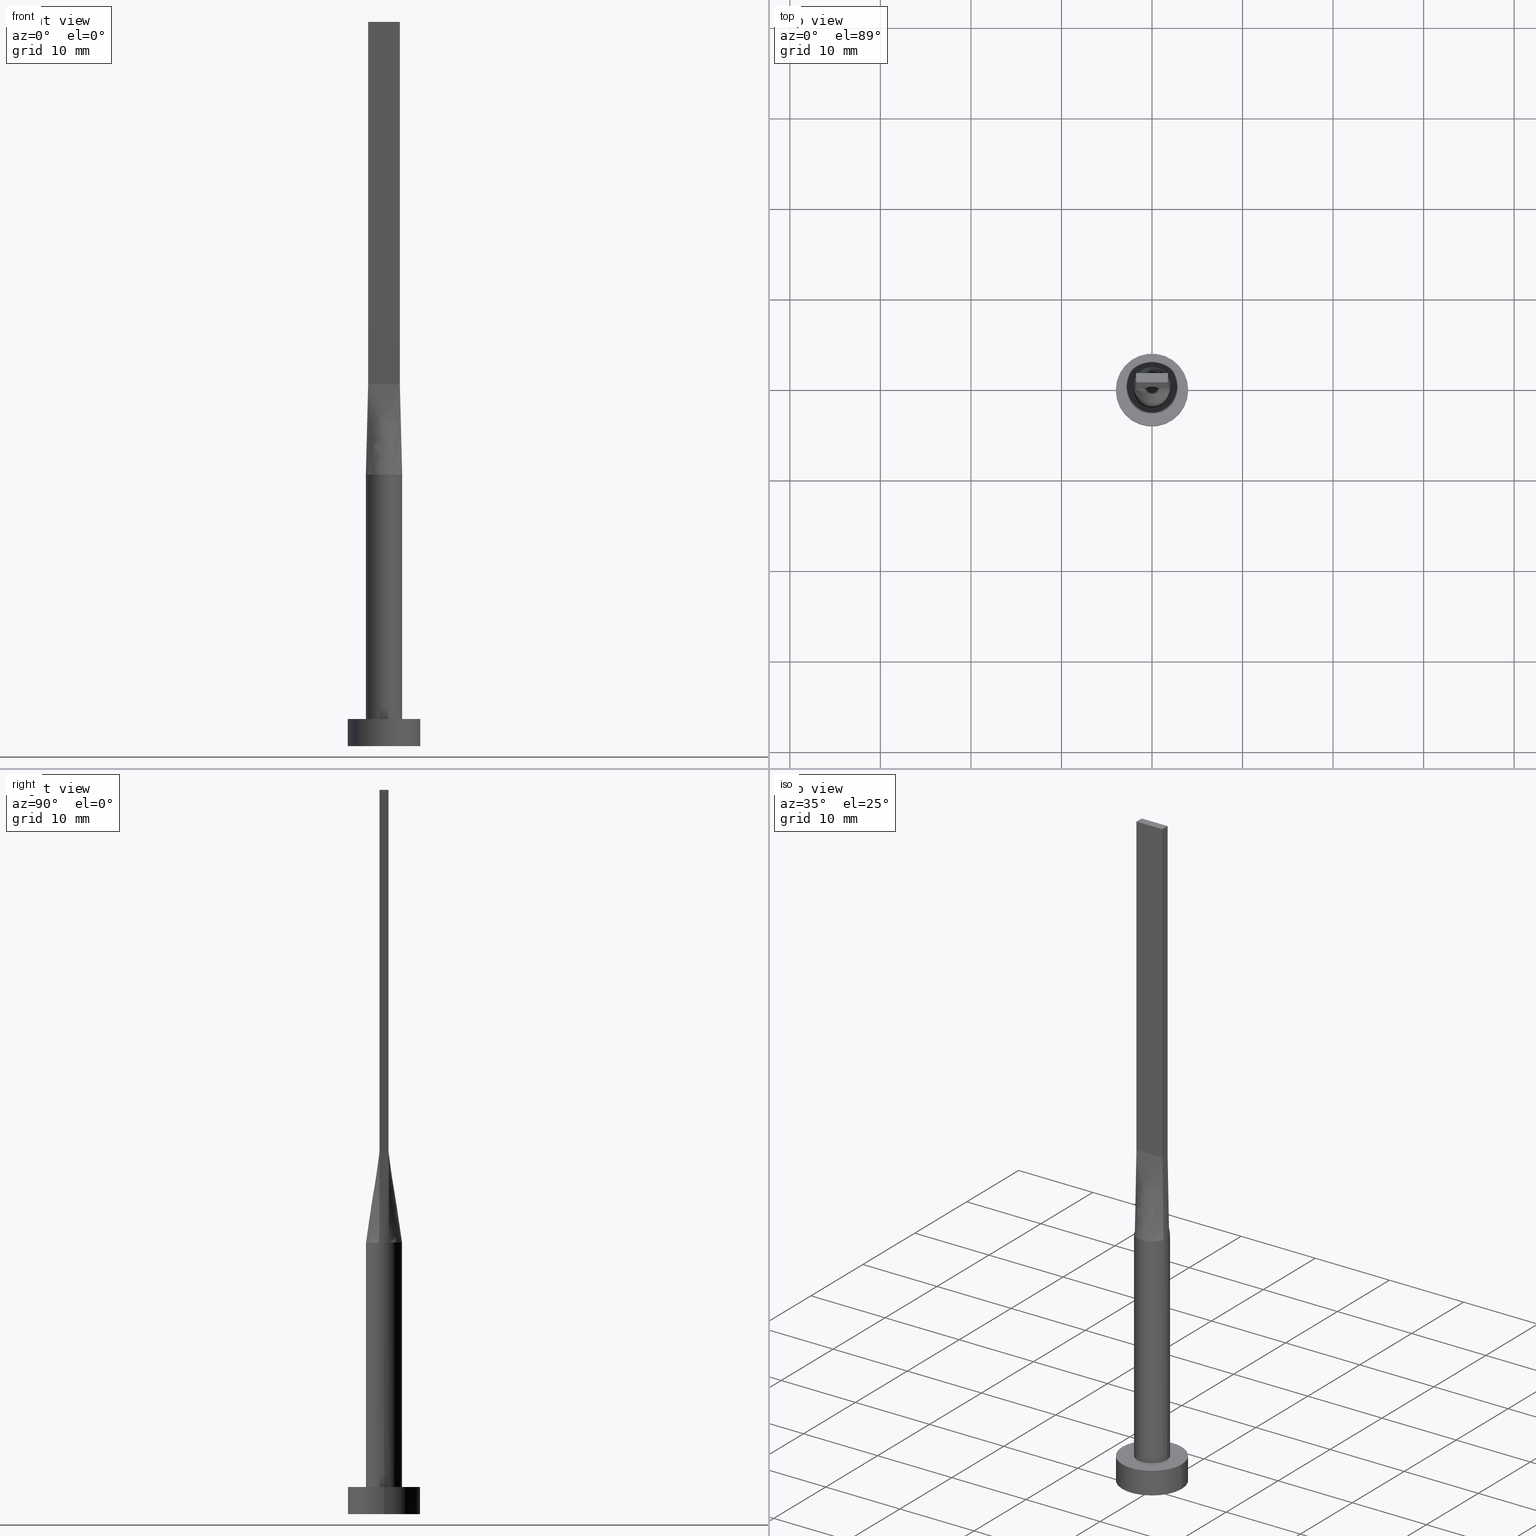
[diagram: canonical four-view strip — front | top / right | iso, engineering-drawing reading convention]
A machine part, canonical four-view strip (front | top / right | iso — engineering-drawing reading convention). The complete STEP part file that produces these views, byte-faithful:
ISO-10303-21;
HEADER;
FILE_DESCRIPTION (( 'STEP AP203' ),
    '1' );
FILE_NAME ('5f00.STEP',
    '2026-02-12T10:42:59',
    ( '' ),
    ( '' ),
    'SwSTEP 2.0',
    'SolidWorks 2019',
    '' );
FILE_SCHEMA (( 'CONFIG_CONTROL_DESIGN' ));
ENDSEC;

DATA;
#1 = APPROVAL_DATE_TIME ( #550, #447 ) ;
#2 = CARTESIAN_POINT ( 'NONE',  ( -1.750000000000000000, -0.4999999999999995559, 80.00000000000000000 ) ) ;
#3 = CARTESIAN_POINT ( 'NONE',  ( 1.879022738048942154, 0.7035303061092218480, 30.00000000000000355 ) ) ;
#4 = CARTESIAN_POINT ( 'NONE',  ( 0.000000000000000000, 0.000000000000000000, 0.000000000000000000 ) ) ;
#5 = LINE ( 'NONE', #97, #457 ) ;
#6 = B_SPLINE_SURFACE_WITH_KNOTS ( 'NONE', 3, 1, ( 
 ( #340, #479 ),
 ( #252, #67 ),
 ( #390, #170 ),
 ( #184, #541 ),
 ( #250, #242 ),
 ( #143, #197 ) ),
 .UNSPECIFIED., .F., .F., .F.,
 ( 4, 2, 4 ),
 ( 2, 2 ),
 ( 0.000000000000000000, 0.5000000000000000000, 1.000000000000000000 ),
 ( 0.000000000000000000, 1.000000000000000000 ),
 .UNSPECIFIED. ) ;
#7 = PERSON_AND_ORGANIZATION ( #155, #561 ) ;
#8 = EDGE_CURVE ( 'NONE', #465, #335, #560, .T. ) ;
#9 = CARTESIAN_POINT ( 'NONE',  ( -0.9545234919502401105, 1.774214358793530177, 30.00000000000000355 ) ) ;
#10 = AXIS2_PLACEMENT_3D ( 'NONE', #265, #129, #345 ) ;
#11 = CARTESIAN_POINT ( 'NONE',  ( 0.000000000000000000, 0.000000000000000000, 3.000000000000000000 ) ) ;
#12 = CARTESIAN_POINT ( 'NONE',  ( -1.836523947640823273, -0.5247211278973773485, 35.00000000000000000 ) ) ;
#13 = CARTESIAN_POINT ( 'NONE',  ( -1.155438169178558017, 1.647245198242353936, 30.00000000000000711 ) ) ;
#14 = ORIENTED_EDGE ( 'NONE', *, *, #538, .F. ) ;
#15 = ORIENTED_EDGE ( 'NONE', *, *, #22, .T. ) ;
#16 = APPROVAL_DATE_TIME ( #330, #208 ) ;
#17 = ORIENTED_EDGE ( 'NONE', *, *, #469, .T. ) ;
#18 = CARTESIAN_POINT ( 'NONE',  ( 1.999999999999999556, -0.1867399261870124894, 30.00000000000000355 ) ) ;
#19 = CARTESIAN_POINT ( 'NONE',  ( -1.750000000000000000, -0.4999999999999995559, 80.00000000000000000 ) ) ;
#20 = AXIS2_PLACEMENT_3D ( 'NONE', #42, #34, #173 ) ;
#21 = ORIENTED_EDGE ( 'NONE', *, *, #78, .T. ) ;
#22 = EDGE_CURVE ( 'NONE', #23, #450, #408, .T. ) ;
#23 = VERTEX_POINT ( 'NONE', #439 ) ;
#24 = FACE_BOUND ( 'NONE', #513, .T. ) ;
#25 = ADVANCED_FACE ( 'NONE', ( #24, #36 ), #528, .T. ) ;
#26 = AXIS2_PLACEMENT_3D ( 'NONE', #284, #281, #456 ) ;
#27 = CARTESIAN_POINT ( 'NONE',  ( 1.458333333333332815, -0.4999999999999996669, 39.99999999999999289 ) ) ;
#28 = LINE ( 'NONE', #71, #263 ) ;
#29 = CARTESIAN_POINT ( 'NONE',  ( -1.155438169178558017, 1.647245198242353936, 30.00000000000000711 ) ) ;
#30 = AXIS2_PLACEMENT_3D ( 'NONE', #81, #314, #177 ) ;
#31 = CARTESIAN_POINT ( 'NONE',  ( 0.5833333333333323711, 0.5000000000000002220, 39.99999999999999289 ) ) ;
#32 = DIRECTION ( 'NONE',  ( 0.000000000000000000, 0.000000000000000000, 1.000000000000000000 ) ) ;
#33 = CARTESIAN_POINT ( 'NONE',  ( -1.812374357931688884, 0.8669367617086288780, 30.00000000000001066 ) ) ;
#34 = DIRECTION ( 'NONE',  ( -0.000000000000000000, -0.000000000000000000, -1.000000000000000000 ) ) ;
#35 = CARTESIAN_POINT ( 'NONE',  ( 0.000000000000000000, 0.000000000000000000, 80.00000000000000000 ) ) ;
#36 = FACE_OUTER_BOUND ( 'NONE', #268, .T. ) ;
#37 = DIRECTION ( 'NONE',  ( -0.000000000000000000, -0.000000000000000000, -1.000000000000000000 ) ) ;
#38 = EDGE_CURVE ( 'NONE', #353, #335, #60, .T. ) ;
#39 = DESIGN_CONTEXT ( 'detailed design', #519, 'design' ) ;
#40 = VECTOR ( 'NONE', #573, 1000.000000000000000 ) ;
#41 = LINE ( 'NONE', #391, #40 ) ;
#42 = CARTESIAN_POINT ( 'NONE',  ( 0.000000000000000000, 0.000000000000000000, 30.00000000000000000 ) ) ;
#43 = APPROVAL_STATUS ( 'not_yet_approved' ) ;
#44 = ORIENTED_EDGE ( 'NONE', *, *, #507, .T. ) ;
#45 = APPROVAL_DATE_TIME ( #190, #581 ) ;
#46 = FACE_OUTER_BOUND ( 'NONE', #229, .T. ) ;
#47 = ORIENTED_EDGE ( 'NONE', *, *, #301, .T. ) ;
#48 = EDGE_LOOP ( 'NONE', ( #516, #371, #346, #200 ) ) ;
#49 = CARTESIAN_POINT ( 'NONE',  ( 1.973362360690451567, -0.3733416268639390689, 30.00000000000000000 ) ) ;
#50 = EDGE_CURVE ( 'NONE', #23, #353, #419, .T. ) ;
#51 = CALENDAR_DATE ( 2026, 12, 2 ) ;
#52 = CARTESIAN_POINT ( 'NONE',  ( -1.879022738048941710, 0.7035303061092221810, 30.00000000000000000 ) ) ;
#53 = AXIS2_PLACEMENT_3D ( 'NONE', #348, #131, #394 ) ;
#54 = CYLINDRICAL_SURFACE ( 'NONE', #214, 4.000000000000000000 ) ;
#55 = CARTESIAN_POINT ( 'NONE',  ( 4.000000000000000000, 4.898587196589412829E-16, 0.000000000000000000 ) ) ;
#56 = APPROVAL_ROLE ( '' ) ;
#57 = ORIENTED_EDGE ( 'NONE', *, *, #395, .F. ) ;
#58 = COORDINATED_UNIVERSAL_TIME_OFFSET ( 1, 0, .AHEAD. ) ;
#59 = EDGE_CURVE ( 'NONE', #327, #244, #201, .T. ) ;
#60 = LINE ( 'NONE', #248, #331 ) ;
#61 = VERTEX_POINT ( 'NONE', #210 ) ;
#62 = ORIENTED_EDGE ( 'NONE', *, *, #264, .F. ) ;
#63 = DIRECTION ( 'NONE',  ( -0.000000000000000000, -0.000000000000000000, -1.000000000000000000 ) ) ;
#64 = CC_DESIGN_DATE_AND_TIME_ASSIGNMENT ( #446, #283, ( #378 ) ) ;
#65 = CARTESIAN_POINT ( 'NONE',  ( -1.749999999999999778, 0.5000000000000002220, 40.00000000000000000 ) ) ;
#66 = AXIS2_PLACEMENT_3D ( 'NONE', #35, #32, #211 ) ;
#67 = CARTESIAN_POINT ( 'NONE',  ( -1.749999999999999778, 0.3333333333333334259, 39.99999999999999289 ) ) ;
#68 =( NAMED_UNIT ( * ) SI_UNIT ( $, .STERADIAN. ) SOLID_ANGLE_UNIT ( ) );
#69 = CARTESIAN_POINT ( 'NONE',  ( 1.836523947640823051, -0.5247211278973777926, 35.00000000000000000 ) ) ;
#70 = EDGE_CURVE ( 'NONE', #514, #23, #160, .T. ) ;
#71 = CARTESIAN_POINT ( 'NONE',  ( -1.749999999999999778, 0.5000000000000002220, 40.00000000000000000 ) ) ;
#72 = DIRECTION ( 'NONE',  ( 0.000000000000000000, 0.000000000000000000, 1.000000000000000000 ) ) ;
#73 = VECTOR ( 'NONE', #529, 1000.000000000000000 ) ;
#74 = DIRECTION ( 'NONE',  ( -0.000000000000000000, -0.000000000000000000, -1.000000000000000000 ) ) ;
#75 = EDGE_LOOP ( 'NONE', ( #407, #47, #17, #420 ) ) ;
#76 = CARTESIAN_POINT ( 'NONE',  ( 0.000000000000000000, 0.000000000000000000, 30.00000000000000000 ) ) ;
#77 = B_SPLINE_SURFACE_WITH_KNOTS ( 'NONE', 3, 1, ( 
 ( #124, #484 ),
 ( #128, #86 ),
 ( #437, #492 ),
 ( #217, #319 ),
 ( #174, #267 ),
 ( #575, #489 ),
 ( #534, #316 ),
 ( #401, #356 ),
 ( #274, #402 ),
 ( #336, #113 ),
 ( #518, #422 ),
 ( #522, #257 ),
 ( #564, #428 ),
 ( #339, #112 ),
 ( #470, #472 ),
 ( #562, #27 ),
 ( #376, #558 ),
 ( #199, #256 ) ),
 .UNSPECIFIED., .F., .F., .F.,
 ( 4, 2, 2, 2, 2, 2, 2, 2, 4 ),
 ( 2, 2 ),
 ( 0.000000000000000000, 0.1249999999999999722, 0.2500000000000000000, 0.3750000000000000000, 0.5000000000000001110, 0.6250000000000001110, 0.7500000000000000000, 0.8750000000000000000, 1.000000000000000000 ),
 ( 0.000000000000000000, 1.000000000000000000 ),
 .UNSPECIFIED. ) ;
#78 = EDGE_CURVE ( 'NONE', #396, #99, #136, .T. ) ;
#79 = ORIENTED_EDGE ( 'NONE', *, *, #202, .T. ) ;
#80 = DIRECTION ( 'NONE',  ( -0.000000000000000000, -0.000000000000000000, -1.000000000000000000 ) ) ;
#81 = CARTESIAN_POINT ( 'NONE',  ( 0.000000000000000000, 0.000000000000000000, 3.000000000000000000 ) ) ;
#82 = PLANE ( 'NONE',  #66 ) ;
#83 = CARTESIAN_POINT ( 'NONE',  ( -1.749999999999999778, 0.5000000000000002220, 80.00000000000000000 ) ) ;
#84 = MANIFOLD_SOLID_BREP ( 'P�idat vysunut�m5', #130 ) ;
#85 = CARTESIAN_POINT ( 'NONE',  ( 1.166666666666665630, 0.5000000000000002220, 39.99999999999999289 ) ) ;
#86 = CARTESIAN_POINT ( 'NONE',  ( -1.604166666666666963, -0.4999999999999995559, 39.99999999999999289 ) ) ;
#87 = CIRCLE ( 'NONE', #189, 2.000000000000000000 ) ;
#88 = DIRECTION ( 'NONE',  ( 0.000000000000000000, 0.000000000000000000, 1.000000000000000000 ) ) ;
#89 = ORIENTED_EDGE ( 'NONE', *, *, #70, .F. ) ;
#90 = APPROVAL_STATUS ( 'not_yet_approved' ) ;
#91 = CARTESIAN_POINT ( 'NONE',  ( 0.000000000000000000, 0.000000000000000000, 3.000000000000000000 ) ) ;
#92 = EDGE_CURVE ( 'NONE', #450, #288, #237, .T. ) ;
#93 = ORIENTED_EDGE ( 'NONE', *, *, #459, .F. ) ;
#94 = EDGE_LOOP ( 'NONE', ( #243, #255, #220, #292 ) ) ;
#95 = COORDINATED_UNIVERSAL_TIME_OFFSET ( 1, 0, .AHEAD. ) ;
#96 = CARTESIAN_POINT ( 'NONE',  ( -1.020833333333333481, 0.5000000000000002220, 39.99999999999999289 ) ) ;
#97 = CARTESIAN_POINT ( 'NONE',  ( -4.000000000000000000, 0.000000000000000000, 3.000000000000000000 ) ) ;
#98 = ORIENTED_EDGE ( 'NONE', *, *, #563, .T. ) ;
#99 = VERTEX_POINT ( 'NONE', #404 ) ;
#100 = CARTESIAN_POINT ( 'NONE',  ( 1.749999999999999778, 0.3333333333333335924, 39.99999999999999289 ) ) ;
#101 = PERSON_AND_ORGANIZATION ( #155, #561 ) ;
#102 = AXIS2_PLACEMENT_3D ( 'NONE', #238, #412, #103 ) ;
#103 = DIRECTION ( 'NONE',  ( 2.168404344971009361E-16, 1.000000000000000000, 0.000000000000000000 ) ) ;
#104 = APPLICATION_PROTOCOL_DEFINITION ( 'international standard', 'config_control_design', 1994, #393 ) ;
#105 = EDGE_CURVE ( 'NONE', #266, #505, #5, .T. ) ;
#106 = EDGE_LOOP ( 'NONE', ( #461, #21, #332, #406, #425, #89 ) ) ;
#107 = EDGE_LOOP ( 'NONE', ( #15, #44, #241, #487, #499 ) ) ;
#108 = UNCERTAINTY_MEASURE_WITH_UNIT (LENGTH_MEASURE( 1.000000000000000082E-05 ), #350, 'distance_accuracy_value', 'NONE');
#109 = CIRCLE ( 'NONE', #30, 4.000000000000000000 ) ;
#110 = VERTEX_POINT ( 'NONE', #544 ) ;
#111 = DIRECTION ( 'NONE',  ( -0.01730198768854150290, 0.004943425053868997360, 0.9998380887777591486 ) ) ;
#112 = CARTESIAN_POINT ( 'NONE',  ( 1.020833333333331927, -0.4999999999999995559, 39.99999999999999289 ) ) ;
#113 = CARTESIAN_POINT ( 'NONE',  ( 0.1458333333333314275, -0.4999999999999995559, 39.99999999999999289 ) ) ;
#114 = AXIS2_PLACEMENT_3D ( 'NONE', #258, #321, #311 ) ;
#115 = ORIENTED_EDGE ( 'NONE', *, *, #59, .F. ) ;
#116 = VECTOR ( 'NONE', #80, 1000.000000000000000 ) ;
#117 = EDGE_CURVE ( 'NONE', #288, #99, #545, .T. ) ;
#118 = LINE ( 'NONE', #577, #273 ) ;
#119 = VERTEX_POINT ( 'NONE', #399 ) ;
#120 = CARTESIAN_POINT ( 'NONE',  ( -1.750000000000000000, -0.4999999999999995559, 80.00000000000000000 ) ) ;
#121 = FACE_OUTER_BOUND ( 'NONE', #392, .T. ) ;
#122 = CARTESIAN_POINT ( 'NONE',  ( 0.000000000000000000, 0.000000000000000000, 3.000000000000000000 ) ) ;
#123 = CARTESIAN_POINT ( 'NONE',  ( 0.5022746254375803909, 1.951069421695587947, 29.99999999999999645 ) ) ;
#124 = CARTESIAN_POINT ( 'NONE',  ( -1.923047895281646547, -0.5494422557947552521, 30.00000000000000000 ) ) ;
#125 = DIRECTION ( 'NONE',  ( -1.000000000000000000, -0.000000000000000000, -0.000000000000000000 ) ) ;
#126 = ADVANCED_FACE ( 'NONE', ( #535 ), #191, .F. ) ;
#127 = AXIS2_PLACEMENT_3D ( 'NONE', #4, #539, #326 ) ;
#128 = CARTESIAN_POINT ( 'NONE',  ( -1.879022738048942598, -0.7035303061092208488, 30.00000000000000355 ) ) ;
#129 = DIRECTION ( 'NONE',  ( 0.000000000000000000, 0.000000000000000000, 1.000000000000000000 ) ) ;
#130 = CLOSED_SHELL ( 'NONE', ( #254, #226, #159, #25, #142, #272, #296, #193, #352, #338, #282, #236, #126, #154, #533 ) ) ;
#131 = DIRECTION ( 'NONE',  ( 0.000000000000000000, 0.000000000000000000, 1.000000000000000000 ) ) ;
#132 = CARTESIAN_POINT ( 'NONE',  ( -1.750000000000000000, -0.4999999999999995559, 40.00000000000000000 ) ) ;
#133 = CALENDAR_DATE ( 2026, 12, 2 ) ;
#134 = CALENDAR_DATE ( 2026, 12, 2 ) ;
#135 = CARTESIAN_POINT ( 'NONE',  ( -0.5833333333333339255, 0.5000000000000002220, 39.99999999999999289 ) ) ;
#136 = LINE ( 'NONE', #325, #556 ) ;
#137 = PRODUCT_RELATED_PRODUCT_CATEGORY ( 'detail', '', ( #576 ) ) ;
#138 = B_SPLINE_SURFACE_WITH_KNOTS ( 'NONE', 3, 1, ( 
 ( #227, #436 ),
 ( #3, #440 ),
 ( #168, #223 ),
 ( #355, #85 ),
 ( #183, #306 ),
 ( #477, #347 ),
 ( #260, #31 ),
 ( #123, #337 ),
 ( #464, #460 ),
 ( #557, #503 ),
 ( #150, #146 ),
 ( #9, #135 ),
 ( #13, #512 ),
 ( #414, #96 ),
 ( #368, #417 ),
 ( #497, #452 ),
 ( #52, #424 ),
 ( #308, #65 ) ),
 .UNSPECIFIED., .F., .F., .F.,
 ( 4, 2, 2, 2, 2, 2, 2, 2, 4 ),
 ( 2, 2 ),
 ( 0.000000000000000000, 0.1249999999999999722, 0.2500000000000000000, 0.3750000000000000000, 0.5000000000000001110, 0.6250000000000001110, 0.7500000000000000000, 0.8750000000000000000, 1.000000000000000000 ),
 ( 0.000000000000000000, 1.000000000000000000 ),
 .UNSPECIFIED. ) ;
#139 = PERSON_AND_ORGANIZATION_ROLE ( 'creator' ) ;
#140 = ORIENTED_EDGE ( 'NONE', *, *, #362, .T. ) ;
#141 = CARTESIAN_POINT ( 'NONE',  ( 1.749999999999999778, 0.5000000000000002220, 80.00000000000000000 ) ) ;
#142 = ADVANCED_FACE ( 'NONE', ( #46 ), #410, .F. ) ;
#143 = CARTESIAN_POINT ( 'NONE',  ( -1.923047895281646547, -0.5494422557947552521, 30.00000000000000000 ) ) ;
#144 = AXIS2_PLACEMENT_3D ( 'NONE', #334, #247, #466 ) ;
#145 = PERSON_AND_ORGANIZATION ( #155, #561 ) ;
#146 = CARTESIAN_POINT ( 'NONE',  ( -0.2916666666666674623, 0.5000000000000002220, 39.99999999999999289 ) ) ;
#147 = LINE ( 'NONE', #567, #509 ) ;
#148 = ORIENTED_EDGE ( 'NONE', *, *, #427, .T. ) ;
#149 = CARTESIAN_POINT ( 'NONE',  ( 1.749999999999999778, -0.1666666666666663243, 39.99999999999999289 ) ) ;
#150 = CARTESIAN_POINT ( 'NONE',  ( -0.5022746254375797248, 1.951069421695588169, 29.99999999999999645 ) ) ;
#151 = ORIENTED_EDGE ( 'NONE', *, *, #372, .T. ) ;
#152 = CARTESIAN_POINT ( 'NONE',  ( -1.836523947640823051, 0.5247211278973779036, 35.00000000000000000 ) ) ;
#153 = CC_DESIGN_APPROVAL ( #447, ( #415 ) ) ;
#154 = ADVANCED_FACE ( 'NONE', ( #580 ), #278, .F. ) ;
#155 = PERSON ( 'NEUR�EN�', 'NEUR�EN�', 'NEUR�EN�', ('NEUR�EN�'), ('NEUR�EN�'), ('NEUR�EN�') ) ;
#156 = AXIS2_PLACEMENT_3D ( 'NONE', #91, #540, #495 ) ;
#157 = CYLINDRICAL_SURFACE ( 'NONE', #578, 2.000000000000000000 ) ;
#158 = ORIENTED_EDGE ( 'NONE', *, *, #548, .T. ) ;
#159 = ADVANCED_FACE ( 'NONE', ( #180 ), #54, .T. ) ;
#160 = B_SPLINE_CURVE_WITH_KNOTS ( 'NONE', 3,
 ( #387, #476, #176, #310, #383, #566, #162, #343, #259, #430, #481, #167, #29, #262, #434, #33, #504, #221 ),
 .UNSPECIFIED., .F., .F.,
 ( 4, 2, 2, 2, 2, 2, 2, 2, 4 ),
 ( 0.000000000000000000, 0.1249999999999999722, 0.2500000000000000000, 0.3750000000000000000, 0.5000000000000001110, 0.6250000000000001110, 0.7500000000000000000, 0.8750000000000000000, 1.000000000000000000 ),
 .UNSPECIFIED. ) ;
#161 = CARTESIAN_POINT ( 'NONE',  ( -1.750000000000000000, -0.4999999999999995559, 80.00000000000000000 ) ) ;
#162 = CARTESIAN_POINT ( 'NONE',  ( 0.9545234919502409987, 1.774214358793529955, 30.00000000000000355 ) ) ;
#163 = CC_DESIGN_APPROVAL ( #208, ( #303 ) ) ;
#164 = DIRECTION ( 'NONE',  ( -0.01730198768854152372, -0.004943425053869007768, 0.9998380887777591486 ) ) ;
#165 = AXIS2_PLACEMENT_3D ( 'NONE', #182, #88, #442 ) ;
#166 = CARTESIAN_POINT ( 'NONE',  ( 1.750000000000000000, -0.4999999999999997780, 80.00000000000000000 ) ) ;
#167 = CARTESIAN_POINT ( 'NONE',  ( -0.9545234919502401105, 1.774214358793530177, 30.00000000000000355 ) ) ;
#168 = CARTESIAN_POINT ( 'NONE',  ( 1.812374357931689328, 0.8669367617086293221, 30.00000000000000355 ) ) ;
#169 = CARTESIAN_POINT ( 'NONE',  ( 4.000000000000000000, 4.898587196589412829E-16, 3.000000000000000000 ) ) ;
#170 = CARTESIAN_POINT ( 'NONE',  ( -1.749999999999999778, 0.1666666666666667129, 39.99999999999999289 ) ) ;
#171 = DIRECTION ( 'NONE',  ( 0.000000000000000000, 0.000000000000000000, 1.000000000000000000 ) ) ;
#172 = CC_DESIGN_PERSON_AND_ORGANIZATION_ASSIGNMENT ( #101, #542, ( #303 ) ) ;
#173 = DIRECTION ( 'NONE',  ( -1.000000000000000000, 0.000000000000000000, 0.000000000000000000 ) ) ;
#174 = CARTESIAN_POINT ( 'NONE',  ( -1.486037034853320060, -1.356520562679217390, 29.99999999999999645 ) ) ;
#175 = DIRECTION ( 'NONE',  ( 0.000000000000000000, 0.000000000000000000, 1.000000000000000000 ) ) ;
#176 = CARTESIAN_POINT ( 'NONE',  ( 1.812374357931689328, 0.8669367617086293221, 30.00000000000000355 ) ) ;
#177 = DIRECTION ( 'NONE',  ( 1.000000000000000000, 0.000000000000000000, 0.000000000000000000 ) ) ;
#178 = LOCAL_TIME ( 11, 42, 59.00000000000000000, #95 ) ;
#179 = ORIENTED_EDGE ( 'NONE', *, *, #559, .T. ) ;
#180 = FACE_OUTER_BOUND ( 'NONE', #94, .T. ) ;
#181 = PERSON_AND_ORGANIZATION ( #155, #561 ) ;
#182 = CARTESIAN_POINT ( 'NONE',  ( 0.000000000000000000, 0.000000000000000000, 0.000000000000000000 ) ) ;
#183 = CARTESIAN_POINT ( 'NONE',  ( 1.486037034853319616, 1.356520562679217834, 29.99999999999999289 ) ) ;
#184 = CARTESIAN_POINT ( 'NONE',  ( -1.999999999999999556, -0.1867399261870113791, 30.00000000000000000 ) ) ;
#185 = EDGE_CURVE ( 'NONE', #465, #119, #369, .T. ) ;
#186 = APPLICATION_PROTOCOL_DEFINITION ( 'international standard', 'config_control_design', 1994, #519 ) ;
#187 = ORIENTED_EDGE ( 'NONE', *, *, #421, .T. ) ;
#188 = CARTESIAN_POINT ( 'NONE',  ( 1.999999999999999556, 0.1867399261870121008, 30.00000000000000000 ) ) ;
#189 = AXIS2_PLACEMENT_3D ( 'NONE', #317, #175, #224 ) ;
#190 = DATE_AND_TIME ( #403, #178 ) ;
#191 = PLANE ( 'NONE',  #206 ) ;
#192 = EDGE_LOOP ( 'NONE', ( #148, #569, #293, #304 ) ) ;
#193 = ADVANCED_FACE ( 'NONE', ( #515 ), #525, .T. ) ;
#194 = ORIENTED_EDGE ( 'NONE', *, *, #92, .T. ) ;
#195 = DIRECTION ( 'NONE',  ( -0.01730198768854152372, -0.004943425053868953992, -0.9998380887777591486 ) ) ;
#196 = ORIENTED_EDGE ( 'NONE', *, *, #538, .T. ) ;
#197 = CARTESIAN_POINT ( 'NONE',  ( -1.750000000000000000, -0.4999999999999995559, 40.00000000000000000 ) ) ;
#198 = VECTOR ( 'NONE', #111, 1000.000000000000227 ) ;
#199 = CARTESIAN_POINT ( 'NONE',  ( 1.923047895281646325, -0.5494422557947558072, 30.00000000000000000 ) ) ;
#200 = ORIENTED_EDGE ( 'NONE', *, *, #372, .F. ) ;
#201 = LINE ( 'NONE', #69, #198 ) ;
#202 = EDGE_CURVE ( 'NONE', #335, #110, #234, .T. ) ;
#203 = FACE_OUTER_BOUND ( 'NONE', #426, .T. ) ;
#204 = CC_DESIGN_APPROVAL ( #581, ( #378 ) ) ;
#205 = ORIENTED_EDGE ( 'NONE', *, *, #507, .F. ) ;
#206 = AXIS2_PLACEMENT_3D ( 'NONE', #2, #270, #276 ) ;
#207 = CARTESIAN_POINT ( 'NONE',  ( -4.000000000000000000, 0.000000000000000000, 3.000000000000000000 ) ) ;
#208 = APPROVAL ( #90, 'NEUR�EN�' ) ;
#209 = DIRECTION ( 'NONE',  ( 1.000000000000000000, -6.195440985631454085E-17, 0.000000000000000000 ) ) ;
#210 = CARTESIAN_POINT ( 'NONE',  ( -1.749999999999999778, 0.5000000000000002220, 80.00000000000000000 ) ) ;
#211 = DIRECTION ( 'NONE',  ( 1.000000000000000000, 0.000000000000000000, -0.000000000000000000 ) ) ;
#212 = DIRECTION ( 'NONE',  ( 1.000000000000000000, 0.000000000000000000, 0.000000000000000000 ) ) ;
#213 = CARTESIAN_POINT ( 'NONE',  ( -1.750000000000000000, -0.4999999999999995559, 40.00000000000000000 ) ) ;
#214 = AXIS2_PLACEMENT_3D ( 'NONE', #11, #37, #354 ) ;
#215 = DIRECTION ( 'NONE',  ( -1.000000000000000000, 0.000000000000000000, 0.000000000000000000 ) ) ;
#216 = CARTESIAN_POINT ( 'NONE',  ( 0.000000000000000000, 0.000000000000000000, 3.000000000000000000 ) ) ;
#217 = CARTESIAN_POINT ( 'NONE',  ( -1.616149014776643744, -1.193458220519941326, 29.99999999999999645 ) ) ;
#218 = DIRECTION ( 'NONE',  ( 0.000000000000000000, 0.000000000000000000, 1.000000000000000000 ) ) ;
#219 = CARTESIAN_POINT ( 'NONE',  ( 0.000000000000000000, 0.000000000000000000, 3.000000000000000000 ) ) ;
#220 = ORIENTED_EDGE ( 'NONE', *, *, #105, .T. ) ;
#221 = CARTESIAN_POINT ( 'NONE',  ( -1.923179810488875541, 0.5494804890868837388, 30.00000000000000000 ) ) ;
#222 = VECTOR ( 'NONE', #531, 1000.000000000000000 ) ;
#223 = CARTESIAN_POINT ( 'NONE',  ( 1.458333333333332371, 0.5000000000000002220, 39.99999999999999289 ) ) ;
#224 = DIRECTION ( 'NONE',  ( 1.000000000000000000, 0.000000000000000000, 0.000000000000000000 ) ) ;
#225 = CARTESIAN_POINT ( 'NONE',  ( -2.000000000000000000, 0.000000000000000000, 30.00000000000000000 ) ) ;
#226 = ADVANCED_FACE ( 'NONE', ( #547 ), #501, .T. ) ;
#227 = CARTESIAN_POINT ( 'NONE',  ( 1.923047895281646325, 0.5494422557947561403, 30.00000000000000000 ) ) ;
#228 = PERSON_AND_ORGANIZATION_ROLE ( 'classification_officer' ) ;
#229 = EDGE_LOOP ( 'NONE', ( #360, #462 ) ) ;
#230 = CARTESIAN_POINT ( 'NONE',  ( 1.923047895281646325, 0.5494422557947563623, 30.00000000000000000 ) ) ;
#231 = DIRECTION ( 'NONE',  ( 2.168404344971008868E-16, -1.000000000000000000, 0.000000000000000000 ) ) ;
#232 = EDGE_LOOP ( 'NONE', ( #279, #380, #280, #98 ) ) ;
#233 = VERTEX_POINT ( 'NONE', #55 ) ;
#234 = LINE ( 'NONE', #12, #246 ) ;
#235 = LOCAL_TIME ( 11, 42, 59.00000000000000000, #358 ) ;
#236 = ADVANCED_FACE ( 'NONE', ( #510 ), #367, .F. ) ;
#237 = LINE ( 'NONE', #225, #116 ) ;
#238 = CARTESIAN_POINT ( 'NONE',  ( -1.749999999999999778, 0.5000000000000002220, 80.00000000000000000 ) ) ;
#239 = PERSON_AND_ORGANIZATION_ROLE ( 'design_owner' ) ;
#240 = VERTEX_POINT ( 'NONE', #141 ) ;
#241 = ORIENTED_EDGE ( 'NONE', *, *, #202, .F. ) ;
#242 = CARTESIAN_POINT ( 'NONE',  ( -1.749999999999999778, -0.3333333333333330373, 39.99999999999999289 ) ) ;
#243 = ORIENTED_EDGE ( 'NONE', *, *, #301, .F. ) ;
#244 = VERTEX_POINT ( 'NONE', #329 ) ;
#245 = VECTOR ( 'NONE', #209, 1000.000000000000000 ) ;
#246 = VECTOR ( 'NONE', #195, 1000.000000000000227 ) ;
#247 = DIRECTION ( 'NONE',  ( 0.000000000000000000, 0.000000000000000000, 1.000000000000000000 ) ) ;
#248 = CARTESIAN_POINT ( 'NONE',  ( -1.749999999999999778, 0.5000000000000002220, 40.00000000000000000 ) ) ;
#249 = CC_DESIGN_PERSON_AND_ORGANIZATION_ASSIGNMENT ( #277, #228, ( #378 ) ) ;
#250 = CARTESIAN_POINT ( 'NONE',  ( -1.973362360690451345, -0.3733416268639377367, 30.00000000000000355 ) ) ;
#251 = ORIENTED_EDGE ( 'NONE', *, *, #572, .F. ) ;
#252 = CARTESIAN_POINT ( 'NONE',  ( -1.973362360690451567, 0.3733416268639390134, 30.00000000000000000 ) ) ;
#253 =( GEOMETRIC_REPRESENTATION_CONTEXT ( 3 ) GLOBAL_UNCERTAINTY_ASSIGNED_CONTEXT ( ( #108 ) ) GLOBAL_UNIT_ASSIGNED_CONTEXT ( ( #350, #579, #68 ) ) REPRESENTATION_CONTEXT ( 'NONE', 'WORKASPACE' ) );
#254 = ADVANCED_FACE ( 'NONE', ( #483 ), #537, .T. ) ;
#255 = ORIENTED_EDGE ( 'NONE', *, *, #320, .F. ) ;
#256 = CARTESIAN_POINT ( 'NONE',  ( 1.750000000000000000, -0.4999999999999997780, 40.00000000000000000 ) ) ;
#257 = CARTESIAN_POINT ( 'NONE',  ( 0.5833333333333317050, -0.4999999999999995559, 39.99999999999999289 ) ) ;
#258 = CARTESIAN_POINT ( 'NONE',  ( 0.000000000000000000, 0.000000000000000000, 30.00000000000000000 ) ) ;
#259 = CARTESIAN_POINT ( 'NONE',  ( 0.2514338042514535632, 1.999999999999999556, 30.00000000000000355 ) ) ;
#260 = CARTESIAN_POINT ( 'NONE',  ( 0.9545234919502409987, 1.774214358793529955, 30.00000000000000355 ) ) ;
#261 = CARTESIAN_POINT ( 'NONE',  ( -2.000000000000000000, 8.710755549421510381E-17, 30.00000000000000000 ) ) ;
#262 = CARTESIAN_POINT ( 'NONE',  ( -1.486037034853319616, 1.356520562679218056, 30.00000000000000355 ) ) ;
#263 = VECTOR ( 'NONE', #125, 1000.000000000000000 ) ;
#264 = EDGE_CURVE ( 'NONE', #335, #244, #318, .T. ) ;
#265 = CARTESIAN_POINT ( 'NONE',  ( 0.000000000000000000, 0.000000000000000000, 0.000000000000000000 ) ) ;
#266 = VERTEX_POINT ( 'NONE', #207 ) ;
#267 = CARTESIAN_POINT ( 'NONE',  ( -1.020833333333334592, -0.4999999999999995559, 39.99999999999999289 ) ) ;
#268 = EDGE_LOOP ( 'NONE', ( #551, #158 ) ) ;
#269 = CARTESIAN_POINT ( 'NONE',  ( 2.000000000000000000, 2.759698982225367658E-17, 30.00000000000000000 ) ) ;
#270 = DIRECTION ( 'NONE',  ( 6.195440985631454085E-17, 1.000000000000000000, -0.000000000000000000 ) ) ;
#271 = DIRECTION ( 'NONE',  ( 1.000000000000000000, 0.000000000000000000, 0.000000000000000000 ) ) ;
#272 = ADVANCED_FACE ( 'NONE', ( #203 ), #157, .T. ) ;
#273 = VECTOR ( 'NONE', #305, 1000.000000000000000 ) ;
#274 = CARTESIAN_POINT ( 'NONE',  ( -0.2514338042514540073, -1.999999999999999112, 29.99999999999999645 ) ) ;
#275 = CALENDAR_DATE ( 2026, 12, 2 ) ;
#276 = DIRECTION ( 'NONE',  ( -1.000000000000000000, 6.195440985631454085E-17, 0.000000000000000000 ) ) ;
#277 = PERSON_AND_ORGANIZATION ( #155, #561 ) ;
#278 = PLANE ( 'NONE',  #287 ) ;
#279 = ORIENTED_EDGE ( 'NONE', *, *, #38, .T. ) ;
#280 = ORIENTED_EDGE ( 'NONE', *, *, #333, .F. ) ;
#281 = DIRECTION ( 'NONE',  ( -0.000000000000000000, -0.000000000000000000, -1.000000000000000000 ) ) ;
#282 = ADVANCED_FACE ( 'NONE', ( #302 ), #381, .F. ) ;
#283 = DATE_TIME_ROLE ( 'classification_date' ) ;
#284 = CARTESIAN_POINT ( 'NONE',  ( 0.000000000000000000, 0.000000000000000000, 3.000000000000000000 ) ) ;
#285 = AXIS2_PLACEMENT_3D ( 'NONE', #486, #218, #438 ) ;
#286 = CARTESIAN_POINT ( 'NONE',  ( 1.750000000000000000, -0.4999999999999997780, 40.00000000000000000 ) ) ;
#287 = AXIS2_PLACEMENT_3D ( 'NONE', #449, #453, #231 ) ;
#288 = VERTEX_POINT ( 'NONE', #377 ) ;
#289 = VERTEX_POINT ( 'NONE', #169 ) ;
#290 = APPROVAL_ROLE ( '' ) ;
#291 = DIRECTION ( 'NONE',  ( 1.000000000000000000, -6.195440985631454085E-17, 0.000000000000000000 ) ) ;
#292 = ORIENTED_EDGE ( 'NONE', *, *, #521, .T. ) ;
#293 = ORIENTED_EDGE ( 'NONE', *, *, #496, .F. ) ;
#294 = CARTESIAN_POINT ( 'NONE',  ( -1.749999999999999778, 0.5000000000000002220, 40.00000000000000000 ) ) ;
#295 = CARTESIAN_POINT ( 'NONE',  ( 1.923047895281646102, -0.5494422557947566954, 30.00000000000000000 ) ) ;
#296 = ADVANCED_FACE ( 'NONE', ( #530 ), #77, .T. ) ;
#297 = ORIENTED_EDGE ( 'NONE', *, *, #185, .T. ) ;
#298 = CIRCLE ( 'NONE', #53, 2.000000000000000000 ) ;
#299 = DIRECTION ( 'NONE',  ( -0.000000000000000000, -0.000000000000000000, -1.000000000000000000 ) ) ;
#300 = CARTESIAN_POINT ( 'NONE',  ( 4.000000000000000000, 4.898587196589412829E-16, 3.000000000000000000 ) ) ;
#301 = EDGE_CURVE ( 'NONE', #289, #233, #374, .T. ) ;
#302 = FACE_OUTER_BOUND ( 'NONE', #192, .T. ) ;
#303 = PRODUCT_DEFINITION_FORMATION_WITH_SPECIFIED_SOURCE ( 'LIBOVOLN�', '', #576, .NOT_KNOWN. ) ;
#304 = ORIENTED_EDGE ( 'NONE', *, *, #395, .T. ) ;
#305 = DIRECTION ( 'NONE',  ( -2.168404344971008868E-16, 1.000000000000000000, -0.000000000000000000 ) ) ;
#306 = CARTESIAN_POINT ( 'NONE',  ( 1.020833333333332371, 0.5000000000000002220, 39.99999999999999289 ) ) ;
#307 = CARTESIAN_POINT ( 'NONE',  ( 1.749999999999999778, 0.5000000000000002220, 80.00000000000000000 ) ) ;
#308 = CARTESIAN_POINT ( 'NONE',  ( -1.923047895281646325, 0.5494422557947555852, 30.00000000000000000 ) ) ;
#309 = CARTESIAN_POINT ( 'NONE',  ( 1.749999999999999778, 0.5000000000000002220, 80.00000000000000000 ) ) ;
#310 = CARTESIAN_POINT ( 'NONE',  ( 1.616149014776643522, 1.193458220519943103, 30.00000000000000000 ) ) ;
#311 = DIRECTION ( 'NONE',  ( 1.000000000000000000, 3.552713678800500929E-15, 0.000000000000000000 ) ) ;
#312 = ORIENTED_EDGE ( 'NONE', *, *, #78, .F. ) ;
#313 = VECTOR ( 'NONE', #565, 1000.000000000000000 ) ;
#314 = DIRECTION ( 'NONE',  ( 0.000000000000000000, 0.000000000000000000, 1.000000000000000000 ) ) ;
#315 = VECTOR ( 'NONE', #299, 1000.000000000000000 ) ;
#316 = CARTESIAN_POINT ( 'NONE',  ( -0.5833333333333350357, -0.4999999999999995559, 39.99999999999999289 ) ) ;
#317 = CARTESIAN_POINT ( 'NONE',  ( 0.000000000000000000, 0.000000000000000000, 30.00000000000000000 ) ) ;
#318 = LINE ( 'NONE', #132, #245 ) ;
#319 = CARTESIAN_POINT ( 'NONE',  ( -1.166666666666667851, -0.4999999999999995559, 39.99999999999999289 ) ) ;
#320 = EDGE_CURVE ( 'NONE', #266, #289, #109, .T. ) ;
#321 = DIRECTION ( 'NONE',  ( 0.000000000000000000, 0.000000000000000000, 1.000000000000000000 ) ) ;
#322 = APPROVAL_STATUS ( 'not_yet_approved' ) ;
#323 = CC_DESIGN_SECURITY_CLASSIFICATION ( #378, ( #303 ) ) ;
#324 = MECHANICAL_CONTEXT ( 'NONE', #393, 'mechanical' ) ;
#325 = CARTESIAN_POINT ( 'NONE',  ( 2.000000000000000000, 2.449293598294706414E-16, 30.00000000000000000 ) ) ;
#326 = DIRECTION ( 'NONE',  ( 1.000000000000000000, 0.000000000000000000, 0.000000000000000000 ) ) ;
#327 = VERTEX_POINT ( 'NONE', #536 ) ;
#328 = CIRCLE ( 'NONE', #285, 4.000000000000000000 ) ;
#329 = CARTESIAN_POINT ( 'NONE',  ( 1.750000000000000000, -0.4999999999999997780, 40.00000000000000000 ) ) ;
#330 = DATE_AND_TIME ( #275, #235 ) ;
#331 = VECTOR ( 'NONE', #349, 1000.000000000000000 ) ;
#332 = ORIENTED_EDGE ( 'NONE', *, *, #384, .T. ) ;
#333 = EDGE_CURVE ( 'NONE', #61, #465, #388, .T. ) ;
#334 = CARTESIAN_POINT ( 'NONE',  ( 0.000000000000000000, 0.000000000000000000, 30.00000000000000000 ) ) ;
#335 = VERTEX_POINT ( 'NONE', #213 ) ;
#336 = CARTESIAN_POINT ( 'NONE',  ( 0.2514338042514523419, -2.000000000000000444, 30.00000000000000000 ) ) ;
#337 = CARTESIAN_POINT ( 'NONE',  ( 0.2916666666666658525, 0.5000000000000002220, 39.99999999999999289 ) ) ;
#338 = ADVANCED_FACE ( 'NONE', ( #443 ), #138, .T. ) ;
#339 = CARTESIAN_POINT ( 'NONE',  ( 1.486037034853319616, -1.356520562679219166, 30.00000000000001066 ) ) ;
#340 = CARTESIAN_POINT ( 'NONE',  ( -1.923047895281646102, 0.5494422557947564734, 30.00000000000000000 ) ) ;
#341 = CIRCLE ( 'NONE', #114, 2.000000000000000000 ) ;
#342 = CARTESIAN_POINT ( 'NONE',  ( 1.750000000000000000, -0.4999999999999997780, 80.00000000000000000 ) ) ;
#343 = CARTESIAN_POINT ( 'NONE',  ( 0.5022746254375803909, 1.951069421695587947, 29.99999999999999645 ) ) ;
#344 = CC_DESIGN_PERSON_AND_ORGANIZATION_ASSIGNMENT ( #458, #493, ( #415 ) ) ;
#345 = DIRECTION ( 'NONE',  ( 1.000000000000000000, 0.000000000000000000, 0.000000000000000000 ) ) ;
#346 = ORIENTED_EDGE ( 'NONE', *, *, #427, .F. ) ;
#347 = CARTESIAN_POINT ( 'NONE',  ( 0.7291666666666657415, 0.5000000000000002220, 39.99999999999999289 ) ) ;
#348 = CARTESIAN_POINT ( 'NONE',  ( 0.000000000000000000, 0.000000000000000000, 30.00000000000000000 ) ) ;
#349 = DIRECTION ( 'NONE',  ( -2.168404344971009361E-16, -1.000000000000000000, 0.000000000000000000 ) ) ;
#350 =( LENGTH_UNIT ( ) NAMED_UNIT ( * ) SI_UNIT ( .MILLI., .METRE. ) );
#351 = AXIS2_PLACEMENT_3D ( 'NONE', #219, #171, #397 ) ;
#352 = ADVANCED_FACE ( 'NONE', ( #526 ), #6, .T. ) ;
#353 = VERTEX_POINT ( 'NONE', #294 ) ;
#354 = DIRECTION ( 'NONE',  ( -1.000000000000000000, 0.000000000000000000, 0.000000000000000000 ) ) ;
#355 = CARTESIAN_POINT ( 'NONE',  ( 1.616149014776643522, 1.193458220519943103, 30.00000000000000000 ) ) ;
#356 = CARTESIAN_POINT ( 'NONE',  ( -0.2916666666666685725, -0.4999999999999995559, 39.99999999999999289 ) ) ;
#357 = APPROVAL_ROLE ( '' ) ;
#358 = COORDINATED_UNIVERSAL_TIME_OFFSET ( 1, 0, .AHEAD. ) ;
#359 = VECTOR ( 'NONE', #527, 1000.000000000000000 ) ;
#360 = ORIENTED_EDGE ( 'NONE', *, *, #521, .F. ) ;
#361 = CARTESIAN_POINT ( 'NONE',  ( 1.749999999999999778, 0.5000000000000002220, 40.00000000000000000 ) ) ;
#362 = EDGE_CURVE ( 'NONE', #396, #514, #385, .T. ) ;
#363 = PRODUCT_DEFINITION_SHAPE ( 'NONE', 'NONE',  #415 ) ;
#364 = ORIENTED_EDGE ( 'NONE', *, *, #572, .T. ) ;
#365 = ORIENTED_EDGE ( 'NONE', *, *, #496, .T. ) ;
#366 = EDGE_LOOP ( 'NONE', ( #370, #552, #416, #475 ) ) ;
#367 = PLANE ( 'NONE',  #102 ) ;
#368 = CARTESIAN_POINT ( 'NONE',  ( -1.616149014776643966, 1.193458220519943103, 30.00000000000000711 ) ) ;
#369 = LINE ( 'NONE', #19, #373 ) ;
#370 = ORIENTED_EDGE ( 'NONE', *, *, #264, .T. ) ;
#371 = ORIENTED_EDGE ( 'NONE', *, *, #50, .T. ) ;
#372 = EDGE_CURVE ( 'NONE', #514, #546, #147, .T. ) ;
#373 = VECTOR ( 'NONE', #291, 1000.000000000000000 ) ;
#374 = LINE ( 'NONE', #300, #543 ) ;
#375 = CC_DESIGN_DATE_AND_TIME_ASSIGNMENT ( #502, #413, ( #415 ) ) ;
#376 = CARTESIAN_POINT ( 'NONE',  ( 1.879022738048941710, -0.7035303061092221810, 30.00000000000000000 ) ) ;
#377 = CARTESIAN_POINT ( 'NONE',  ( -2.000000000000000000, 0.000000000000000000, 3.000000000000000000 ) ) ;
#378 = SECURITY_CLASSIFICATION ( '', '', #409 ) ;
#379 = AXIS2_PLACEMENT_3D ( 'NONE', #122, #574, #468 ) ;
#380 = ORIENTED_EDGE ( 'NONE', *, *, #8, .F. ) ;
#381 = PLANE ( 'NONE',  #398 ) ;
#382 = ADVANCED_BREP_SHAPE_REPRESENTATION ( '5f00', ( #84, #127 ), #253 ) ;
#383 = CARTESIAN_POINT ( 'NONE',  ( 1.486037034853319616, 1.356520562679217834, 29.99999999999999289 ) ) ;
#384 = EDGE_CURVE ( 'NONE', #99, #288, #523, .T. ) ;
#385 = CIRCLE ( 'NONE', #144, 2.000000000000000000 ) ;
#386 = LINE ( 'NONE', #342, #222 ) ;
#387 = CARTESIAN_POINT ( 'NONE',  ( 1.923154993136894975, 0.5494733089275741778, 30.00000000000000000 ) ) ;
#388 = LINE ( 'NONE', #83, #73 ) ;
#389 = DIRECTION ( 'NONE',  ( 0.000000000000000000, -0.000000000000000000, -1.000000000000000000 ) ) ;
#390 = CARTESIAN_POINT ( 'NONE',  ( -1.999999999999999556, 0.1867399261870127114, 30.00000000000000355 ) ) ;
#391 = CARTESIAN_POINT ( 'NONE',  ( -1.749999999999999778, 0.5000000000000002220, 80.00000000000000000 ) ) ;
#392 = EDGE_LOOP ( 'NONE', ( #365, #488, #297, #196 ) ) ;
#393 = APPLICATION_CONTEXT ( 'configuration controlled 3d designs of mechanical parts and assemblies' ) ;
#394 = DIRECTION ( 'NONE',  ( 1.000000000000000000, 0.000000000000000000, 0.000000000000000000 ) ) ;
#395 = EDGE_CURVE ( 'NONE', #240, #546, #524, .T. ) ;
#396 = VERTEX_POINT ( 'NONE', #269 ) ;
#397 = DIRECTION ( 'NONE',  ( 1.000000000000000000, 0.000000000000000000, 0.000000000000000000 ) ) ;
#398 = AXIS2_PLACEMENT_3D ( 'NONE', #307, #478, #389 ) ;
#399 = CARTESIAN_POINT ( 'NONE',  ( 1.750000000000000000, -0.4999999999999997780, 80.00000000000000000 ) ) ;
#400 = VECTOR ( 'NONE', #570, 1000.000000000000227 ) ;
#401 = CARTESIAN_POINT ( 'NONE',  ( -0.5022746254375808350, -1.951069421695587724, 29.99999999999999289 ) ) ;
#402 = CARTESIAN_POINT ( 'NONE',  ( -0.1458333333333353687, -0.4999999999999995559, 40.00000000000000000 ) ) ;
#403 = CALENDAR_DATE ( 2026, 12, 2 ) ;
#404 = CARTESIAN_POINT ( 'NONE',  ( 2.000000000000000000, 2.449293598294706414E-16, 3.000000000000000000 ) ) ;
#405 = CC_DESIGN_PERSON_AND_ORGANIZATION_ASSIGNMENT ( #511, #139, ( #303 ) ) ;
#406 = ORIENTED_EDGE ( 'NONE', *, *, #92, .F. ) ;
#407 = ORIENTED_EDGE ( 'NONE', *, *, #548, .F. ) ;
#408 = CIRCLE ( 'NONE', #435, 2.000000000000000000 ) ;
#409 = SECURITY_CLASSIFICATION_LEVEL ( 'unclassified' ) ;
#410 = PLANE ( 'NONE',  #165 ) ;
#411 = ORIENTED_EDGE ( 'NONE', *, *, #559, .F. ) ;
#412 = DIRECTION ( 'NONE',  ( 1.000000000000000000, -2.168404344971009361E-16, 0.000000000000000000 ) ) ;
#413 = DATE_TIME_ROLE ( 'creation_date' ) ;
#414 = CARTESIAN_POINT ( 'NONE',  ( -1.486037034853319616, 1.356520562679218056, 30.00000000000000355 ) ) ;
#415 = PRODUCT_DEFINITION ( 'NEZN�M�', '', #303, #39 ) ;
#416 = ORIENTED_EDGE ( 'NONE', *, *, #185, .F. ) ;
#417 = CARTESIAN_POINT ( 'NONE',  ( -1.166666666666666519, 0.5000000000000002220, 39.99999999999999289 ) ) ;
#418 = APPROVAL_PERSON_ORGANIZATION ( #145, #447, #290 ) ;
#419 = LINE ( 'NONE', #152, #400 ) ;
#420 = ORIENTED_EDGE ( 'NONE', *, *, #105, .F. ) ;
#421 = EDGE_CURVE ( 'NONE', #119, #244, #429, .T. ) ;
#422 = CARTESIAN_POINT ( 'NONE',  ( 0.2916666666666649643, -0.4999999999999995559, 39.99999999999999289 ) ) ;
#423 = AXIS2_PLACEMENT_3D ( 'NONE', #216, #568, #271 ) ;
#424 = CARTESIAN_POINT ( 'NONE',  ( -1.604166666666666519, 0.5000000000000002220, 39.99999999999999289 ) ) ;
#425 = ORIENTED_EDGE ( 'NONE', *, *, #22, .F. ) ;
#426 = EDGE_LOOP ( 'NONE', ( #312, #93, #251, #205, #194, #471 ) ) ;
#427 = EDGE_CURVE ( 'NONE', #546, #353, #28, .T. ) ;
#428 = CARTESIAN_POINT ( 'NONE',  ( 0.7291666666666650753, -0.4999999999999995559, 39.99999999999999289 ) ) ;
#429 = LINE ( 'NONE', #166, #432 ) ;
#430 = CARTESIAN_POINT ( 'NONE',  ( -0.2514338042514528415, 1.999999999999999556, 30.00000000000001066 ) ) ;
#431 = DIRECTION ( 'NONE',  ( -0.000000000000000000, -0.000000000000000000, -1.000000000000000000 ) ) ;
#432 = VECTOR ( 'NONE', #74, 1000.000000000000000 ) ;
#433 = LINE ( 'NONE', #444, #359 ) ;
#434 = CARTESIAN_POINT ( 'NONE',  ( -1.616149014776643966, 1.193458220519943103, 30.00000000000000711 ) ) ;
#435 = AXIS2_PLACEMENT_3D ( 'NONE', #76, #72, #212 ) ;
#436 = CARTESIAN_POINT ( 'NONE',  ( 1.749999999999998890, 0.5000000000000002220, 40.00000000000000000 ) ) ;
#437 = CARTESIAN_POINT ( 'NONE',  ( -1.812374357931689994, -0.8669367617086277678, 30.00000000000000355 ) ) ;
#438 = DIRECTION ( 'NONE',  ( 1.000000000000000000, 0.000000000000000000, 0.000000000000000000 ) ) ;
#439 = CARTESIAN_POINT ( 'NONE',  ( -1.923179810488875541, 0.5494804890868837388, 30.00000000000000000 ) ) ;
#440 = CARTESIAN_POINT ( 'NONE',  ( 1.604166666666665630, 0.5000000000000002220, 39.99999999999999289 ) ) ;
#441 = CARTESIAN_POINT ( 'NONE',  ( -4.000000000000000000, 0.000000000000000000, 0.000000000000000000 ) ) ;
#442 = DIRECTION ( 'NONE',  ( 1.000000000000000000, 0.000000000000000000, -0.000000000000000000 ) ) ;
#443 = FACE_OUTER_BOUND ( 'NONE', #48, .T. ) ;
#444 = CARTESIAN_POINT ( 'NONE',  ( 1.749999999999999778, 0.5000000000000002220, 80.00000000000000000 ) ) ;
#445 = CIRCLE ( 'NONE', #423, 4.000000000000000000 ) ;
#446 = DATE_AND_TIME ( #51, #494 ) ;
#447 = APPROVAL ( #322, 'NEUR�EN�' ) ;
#448 = COORDINATED_UNIVERSAL_TIME_OFFSET ( 1, 0, .AHEAD. ) ;
#449 = CARTESIAN_POINT ( 'NONE',  ( 1.750000000000000000, -0.4999999999999997780, 80.00000000000000000 ) ) ;
#450 = VERTEX_POINT ( 'NONE', #261 ) ;
#451 = SHAPE_DEFINITION_REPRESENTATION ( #363, #382 ) ;
#452 = CARTESIAN_POINT ( 'NONE',  ( -1.458333333333333259, 0.5000000000000002220, 39.99999999999999289 ) ) ;
#453 = DIRECTION ( 'NONE',  ( -1.000000000000000000, -2.168404344971008868E-16, 0.000000000000000000 ) ) ;
#454 = APPROVAL_PERSON_ORGANIZATION ( #181, #581, #357 ) ;
#455 = ORIENTED_EDGE ( 'NONE', *, *, #117, .F. ) ;
#456 = DIRECTION ( 'NONE',  ( -1.000000000000000000, 0.000000000000000000, 0.000000000000000000 ) ) ;
#457 = VECTOR ( 'NONE', #491, 1000.000000000000000 ) ;
#458 = PERSON_AND_ORGANIZATION ( #155, #561 ) ;
#459 = EDGE_CURVE ( 'NONE', #327, #396, #341, .T. ) ;
#460 = CARTESIAN_POINT ( 'NONE',  ( 0.1458333333333326209, 0.5000000000000002220, 40.00000000000000000 ) ) ;
#461 = ORIENTED_EDGE ( 'NONE', *, *, #362, .F. ) ;
#462 = ORIENTED_EDGE ( 'NONE', *, *, #469, .F. ) ;
#463 = PERSON_AND_ORGANIZATION ( #155, #561 ) ;
#464 = CARTESIAN_POINT ( 'NONE',  ( 0.2514338042514535632, 1.999999999999999556, 30.00000000000000355 ) ) ;
#465 = VERTEX_POINT ( 'NONE', #161 ) ;
#466 = DIRECTION ( 'NONE',  ( 1.000000000000000000, 0.000000000000000000, 0.000000000000000000 ) ) ;
#467 = EDGE_LOOP ( 'NONE', ( #179, #57, #14, #187 ) ) ;
#468 = DIRECTION ( 'NONE',  ( 1.000000000000000000, 0.000000000000000000, -0.000000000000000000 ) ) ;
#469 = EDGE_CURVE ( 'NONE', #233, #505, #328, .T. ) ;
#470 = CARTESIAN_POINT ( 'NONE',  ( 1.616149014776643522, -1.193458220519943547, 30.00000000000000711 ) ) ;
#471 = ORIENTED_EDGE ( 'NONE', *, *, #117, .T. ) ;
#472 = CARTESIAN_POINT ( 'NONE',  ( 1.166666666666665408, -0.4999999999999995559, 39.99999999999999289 ) ) ;
#473 = LOCAL_TIME ( 11, 42, 59.00000000000000000, #58 ) ;
#474 = EDGE_LOOP ( 'NONE', ( #364, #500, #62, #79 ) ) ;
#475 = ORIENTED_EDGE ( 'NONE', *, *, #8, .T. ) ;
#476 = CARTESIAN_POINT ( 'NONE',  ( 1.879022738048942154, 0.7035303061092218480, 30.00000000000000355 ) ) ;
#477 = CARTESIAN_POINT ( 'NONE',  ( 1.155438169178558461, 1.647245198242353714, 29.99999999999999645 ) ) ;
#478 = DIRECTION ( 'NONE',  ( 0.000000000000000000, -1.000000000000000000, 0.000000000000000000 ) ) ;
#479 = CARTESIAN_POINT ( 'NONE',  ( -1.749999999999999778, 0.5000000000000002220, 40.00000000000000000 ) ) ;
#480 = CARTESIAN_POINT ( 'NONE',  ( 1.749999999999999778, 0.5000000000000002220, 40.00000000000000000 ) ) ;
#481 = CARTESIAN_POINT ( 'NONE',  ( -0.5022746254375797248, 1.951069421695588169, 29.99999999999999645 ) ) ;
#482 = CC_DESIGN_PERSON_AND_ORGANIZATION_ASSIGNMENT ( #463, #239, ( #576 ) ) ;
#483 = FACE_OUTER_BOUND ( 'NONE', #106, .T. ) ;
#484 = CARTESIAN_POINT ( 'NONE',  ( -1.750000000000000000, -0.4999999999999995559, 40.00000000000000000 ) ) ;
#485 = APPROVAL_PERSON_ORGANIZATION ( #7, #208, #56 ) ;
#486 = CARTESIAN_POINT ( 'NONE',  ( 0.000000000000000000, 0.000000000000000000, 0.000000000000000000 ) ) ;
#487 = ORIENTED_EDGE ( 'NONE', *, *, #38, .F. ) ;
#488 = ORIENTED_EDGE ( 'NONE', *, *, #333, .T. ) ;
#489 = CARTESIAN_POINT ( 'NONE',  ( -0.7291666666666681840, -0.4999999999999995559, 39.99999999999999289 ) ) ;
#490 = CARTESIAN_POINT ( 'NONE',  ( 1.923154993136894975, 0.5494733089275741778, 30.00000000000000000 ) ) ;
#491 = DIRECTION ( 'NONE',  ( -0.000000000000000000, -0.000000000000000000, -1.000000000000000000 ) ) ;
#492 = CARTESIAN_POINT ( 'NONE',  ( -1.458333333333333925, -0.4999999999999995559, 39.99999999999999289 ) ) ;
#493 = PERSON_AND_ORGANIZATION_ROLE ( 'creator' ) ;
#494 = LOCAL_TIME ( 11, 42, 59.00000000000000000, #448 ) ;
#495 = DIRECTION ( 'NONE',  ( 1.000000000000000000, 0.000000000000000000, 0.000000000000000000 ) ) ;
#496 = EDGE_CURVE ( 'NONE', #240, #61, #433, .T. ) ;
#497 = CARTESIAN_POINT ( 'NONE',  ( -1.812374357931688884, 0.8669367617086288780, 30.00000000000001066 ) ) ;
#498 = DIRECTION ( 'NONE',  ( -0.000000000000000000, -0.000000000000000000, -1.000000000000000000 ) ) ;
#499 = ORIENTED_EDGE ( 'NONE', *, *, #50, .F. ) ;
#500 = ORIENTED_EDGE ( 'NONE', *, *, #59, .T. ) ;
#501 = CYLINDRICAL_SURFACE ( 'NONE', #26, 4.000000000000000000 ) ;
#502 = DATE_AND_TIME ( #134, #553 ) ;
#503 = CARTESIAN_POINT ( 'NONE',  ( -0.1458333333333340365, 0.5000000000000002220, 39.99999999999999289 ) ) ;
#504 = CARTESIAN_POINT ( 'NONE',  ( -1.879022738048941710, 0.7035303061092221810, 30.00000000000000000 ) ) ;
#505 = VERTEX_POINT ( 'NONE', #441 ) ;
#506 = CARTESIAN_POINT ( 'NONE',  ( 1.973362360690451567, 0.3733416268639386804, 30.00000000000000355 ) ) ;
#507 = EDGE_CURVE ( 'NONE', #450, #110, #298, .T. ) ;
#508 = COORDINATED_UNIVERSAL_TIME_OFFSET ( 1, 0, .AHEAD. ) ;
#509 = VECTOR ( 'NONE', #164, 1000.000000000000227 ) ;
#510 = FACE_OUTER_BOUND ( 'NONE', #232, .T. ) ;
#511 = PERSON_AND_ORGANIZATION ( #155, #561 ) ;
#512 = CARTESIAN_POINT ( 'NONE',  ( -0.7291666666666671848, 0.5000000000000002220, 39.99999999999999289 ) ) ;
#513 = EDGE_LOOP ( 'NONE', ( #455, #520 ) ) ;
#514 = VERTEX_POINT ( 'NONE', #490 ) ;
#515 = FACE_OUTER_BOUND ( 'NONE', #554, .T. ) ;
#516 = ORIENTED_EDGE ( 'NONE', *, *, #70, .T. ) ;
#517 = CIRCLE ( 'NONE', #10, 4.000000000000000000 ) ;
#518 = CARTESIAN_POINT ( 'NONE',  ( 0.5022746254375793917, -1.951069421695588169, 29.99999999999999645 ) ) ;
#519 = APPLICATION_CONTEXT ( 'configuration controlled 3d designs of mechanical parts and assemblies' ) ;
#520 = ORIENTED_EDGE ( 'NONE', *, *, #384, .F. ) ;
#521 = EDGE_CURVE ( 'NONE', #505, #233, #517, .T. ) ;
#522 = CARTESIAN_POINT ( 'NONE',  ( 0.9545234919502404436, -1.774214358793530177, 30.00000000000001066 ) ) ;
#523 = CIRCLE ( 'NONE', #351, 2.000000000000000000 ) ;
#524 = LINE ( 'NONE', #309, #313 ) ;
#525 = B_SPLINE_SURFACE_WITH_KNOTS ( 'NONE', 3, 1, ( 
 ( #295, #286 ),
 ( #49, #549 ),
 ( #18, #149 ),
 ( #188, #555 ),
 ( #506, #100 ),
 ( #230, #361 ) ),
 .UNSPECIFIED., .F., .F., .F.,
 ( 4, 2, 4 ),
 ( 2, 2 ),
 ( 0.000000000000000000, 0.5000000000000000000, 1.000000000000000000 ),
 ( 0.000000000000000000, 1.000000000000000000 ),
 .UNSPECIFIED. ) ;
#526 = FACE_OUTER_BOUND ( 'NONE', #107, .T. ) ;
#527 = DIRECTION ( 'NONE',  ( -1.000000000000000000, 0.000000000000000000, 0.000000000000000000 ) ) ;
#528 = PLANE ( 'NONE',  #379 ) ;
#529 = DIRECTION ( 'NONE',  ( -2.168404344971009361E-16, -1.000000000000000000, 0.000000000000000000 ) ) ;
#530 = FACE_OUTER_BOUND ( 'NONE', #474, .T. ) ;
#531 = DIRECTION ( 'NONE',  ( -2.168404344971008868E-16, 1.000000000000000000, 0.000000000000000000 ) ) ;
#532 = ORIENTED_EDGE ( 'NONE', *, *, #459, .T. ) ;
#533 = ADVANCED_FACE ( 'NONE', ( #121 ), #82, .T. ) ;
#534 = CARTESIAN_POINT ( 'NONE',  ( -0.9545234919502417759, -1.774214358793529067, 30.00000000000000355 ) ) ;
#535 = FACE_OUTER_BOUND ( 'NONE', #366, .T. ) ;
#536 = CARTESIAN_POINT ( 'NONE',  ( 1.923186205402444449, -0.5494823831763672173, 30.00000000000000000 ) ) ;
#537 = CYLINDRICAL_SURFACE ( 'NONE', #20, 2.000000000000000000 ) ;
#538 = EDGE_CURVE ( 'NONE', #119, #240, #386, .T. ) ;
#539 = DIRECTION ( 'NONE',  ( 0.000000000000000000, 0.000000000000000000, 1.000000000000000000 ) ) ;
#540 = DIRECTION ( 'NONE',  ( 0.000000000000000000, 0.000000000000000000, 1.000000000000000000 ) ) ;
#541 = CARTESIAN_POINT ( 'NONE',  ( -1.749999999999999778, -0.1666666666666665186, 39.99999999999999289 ) ) ;
#542 = PERSON_AND_ORGANIZATION_ROLE ( 'design_supplier' ) ;
#543 = VECTOR ( 'NONE', #63, 1000.000000000000000 ) ;
#544 = CARTESIAN_POINT ( 'NONE',  ( -1.923161340940673369, -0.5494751859438878894, 30.00000000000000000 ) ) ;
#545 = CIRCLE ( 'NONE', #156, 2.000000000000000000 ) ;
#546 = VERTEX_POINT ( 'NONE', #480 ) ;
#547 = FACE_OUTER_BOUND ( 'NONE', #75, .T. ) ;
#548 = EDGE_CURVE ( 'NONE', #289, #266, #445, .T. ) ;
#549 = CARTESIAN_POINT ( 'NONE',  ( 1.749999999999999778, -0.3333333333333330373, 39.99999999999999289 ) ) ;
#550 = DATE_AND_TIME ( #133, #473 ) ;
#551 = ORIENTED_EDGE ( 'NONE', *, *, #320, .T. ) ;
#552 = ORIENTED_EDGE ( 'NONE', *, *, #421, .F. ) ;
#553 = LOCAL_TIME ( 11, 42, 59.00000000000000000, #508 ) ;
#554 = EDGE_LOOP ( 'NONE', ( #532, #140, #151, #411, #115 ) ) ;
#555 = CARTESIAN_POINT ( 'NONE',  ( 1.749999999999999778, 0.1666666666666669905, 39.99999999999999289 ) ) ;
#556 = VECTOR ( 'NONE', #498, 1000.000000000000000 ) ;
#557 = CARTESIAN_POINT ( 'NONE',  ( -0.2514338042514528415, 1.999999999999999556, 30.00000000000001066 ) ) ;
#558 = CARTESIAN_POINT ( 'NONE',  ( 1.604166666666666519, -0.4999999999999997780, 39.99999999999999289 ) ) ;
#559 = EDGE_CURVE ( 'NONE', #244, #546, #118, .T. ) ;
#560 = LINE ( 'NONE', #120, #315 ) ;
#561 = ORGANIZATION ( 'NEUR�EN�', 'NEUR�EN�', '' ) ;
#562 = CARTESIAN_POINT ( 'NONE',  ( 1.812374357931689106, -0.8669367617086289890, 30.00000000000001066 ) ) ;
#563 = EDGE_CURVE ( 'NONE', #61, #353, #41, .T. ) ;
#564 = CARTESIAN_POINT ( 'NONE',  ( 1.155438169178558017, -1.647245198242354158, 30.00000000000001066 ) ) ;
#565 = DIRECTION ( 'NONE',  ( -0.000000000000000000, -0.000000000000000000, -1.000000000000000000 ) ) ;
#566 = CARTESIAN_POINT ( 'NONE',  ( 1.155438169178558461, 1.647245198242353714, 29.99999999999999645 ) ) ;
#567 = CARTESIAN_POINT ( 'NONE',  ( 1.836523947640823051, 0.5247211278973783477, 35.00000000000000000 ) ) ;
#568 = DIRECTION ( 'NONE',  ( 0.000000000000000000, 0.000000000000000000, 1.000000000000000000 ) ) ;
#569 = ORIENTED_EDGE ( 'NONE', *, *, #563, .F. ) ;
#570 = DIRECTION ( 'NONE',  ( 0.01730198768854152372, -0.004943425053868931440, 0.9998380887777591486 ) ) ;
#571 = CARTESIAN_POINT ( 'NONE',  ( 0.000000000000000000, 0.000000000000000000, 30.00000000000000000 ) ) ;
#572 = EDGE_CURVE ( 'NONE', #110, #327, #87, .T. ) ;
#573 = DIRECTION ( 'NONE',  ( -0.000000000000000000, -0.000000000000000000, -1.000000000000000000 ) ) ;
#574 = DIRECTION ( 'NONE',  ( 0.000000000000000000, 0.000000000000000000, 1.000000000000000000 ) ) ;
#575 = CARTESIAN_POINT ( 'NONE',  ( -1.155438169178558461, -1.647245198242353714, 30.00000000000000355 ) ) ;
#576 = PRODUCT ( '5f00', '5f00', '', ( #324 ) ) ;
#577 = CARTESIAN_POINT ( 'NONE',  ( 1.749999999999999778, 0.5000000000000002220, 40.00000000000000000 ) ) ;
#578 = AXIS2_PLACEMENT_3D ( 'NONE', #571, #431, #215 ) ;
#579 =( NAMED_UNIT ( * ) PLANE_ANGLE_UNIT ( ) SI_UNIT ( $, .RADIAN. ) );
#580 = FACE_OUTER_BOUND ( 'NONE', #467, .T. ) ;
#581 = APPROVAL ( #43, 'NEUR�EN�' ) ;
ENDSEC;
END-ISO-10303-21;
